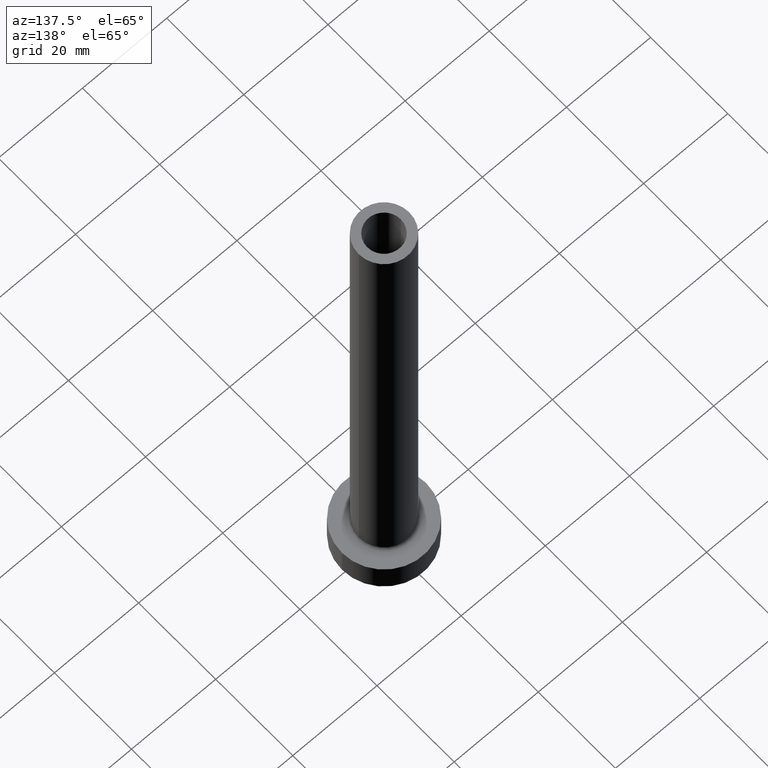
[diagram: clean part render]
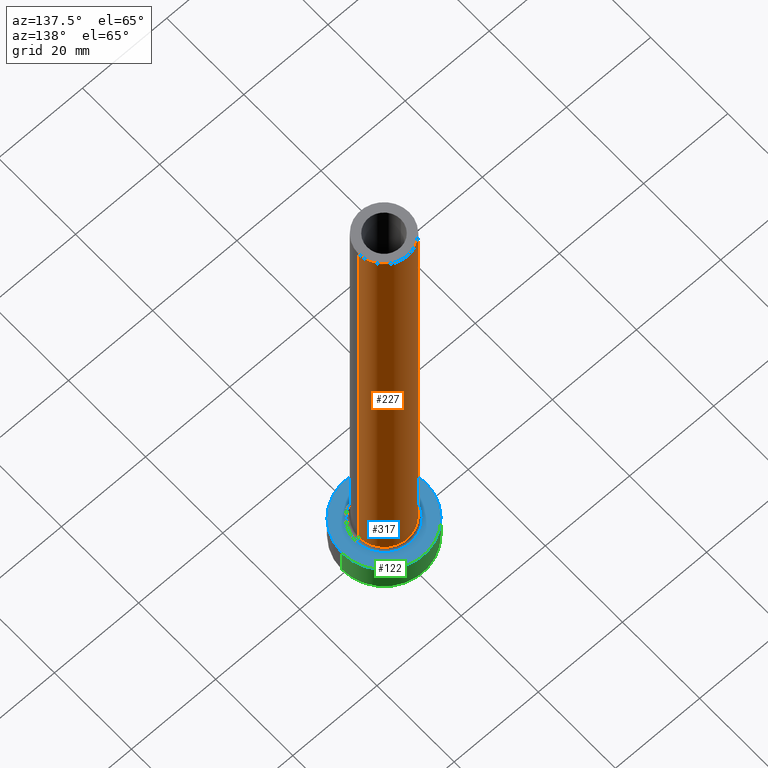
[diagram: same view with three faces highlighted in distinct colors, each labeled with its STEP entity id]
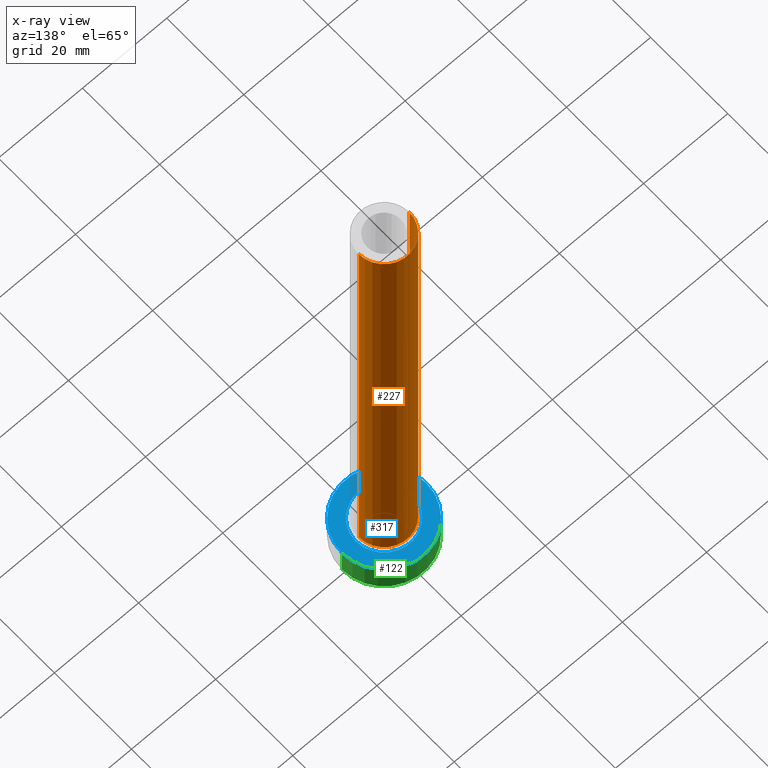
[diagram: x-ray of the same camera — body ghosted, the three highlighted faces saturated]
A machine part, auxiliary view with three faces highlighted in distinct colors.
The next image is the same camera in x-ray (body ghosted, the three faces saturated) — at least one of them is partly hidden behind the body in this view.
Their STEP definitions:

[orange] entity #227 — the highlighted cylindrical surface (edge-blend (fillet) strip) has radius 6 mm, axis along (-0, -0, -1).
#9 = VECTOR ( 'NONE', #151, 1000.000000000000000 ) ;
#21 = EDGE_LOOP ( 'NONE', ( #425, #316, #273, #22 ) ) ;
#22 = ORIENTED_EDGE ( 'NONE', *, *, #302, .F. ) ;
#26 = CARTESIAN_POINT ( 'NONE',  ( 0.000000000000000000, 0.000000000000000000, 125.0000000000000000 ) ) ;
#33 = DIRECTION ( 'NONE',  ( -1.000000000000000000, 0.000000000000000000, 0.000000000000000000 ) ) ;
#62 = CYLINDRICAL_SURFACE ( 'NONE', #203, 6.000000000000000888 ) ;
#78 = LINE ( 'NONE', #439, #92 ) ;
#92 = VECTOR ( 'NONE', #187, 1000.000000000000000 ) ;
#104 = FACE_OUTER_BOUND ( 'NONE', #21, .T. ) ;
#151 = DIRECTION ( 'NONE',  ( -0.000000000000000000, -0.000000000000000000, -1.000000000000000000 ) ) ;
#185 = CIRCLE ( 'NONE', #413, 6.000000000000000888 ) ;
#187 = DIRECTION ( 'NONE',  ( -0.000000000000000000, -0.000000000000000000, -1.000000000000000000 ) ) ;
#203 = AXIS2_PLACEMENT_3D ( 'NONE', #26, #321, #33 ) ;
#208 = CARTESIAN_POINT ( 'NONE',  ( -6.000000000000000888, 0.000000000000000000, 125.0000000000000000 ) ) ;
#219 = CARTESIAN_POINT ( 'NONE',  ( -6.000000000000000888, 0.000000000000000000, 7.699999999999998401 ) ) ;
#226 = VERTEX_POINT ( 'NONE', #356 ) ;
#227 = ADVANCED_FACE ( 'NONE', ( #104 ), #62, .T. ) ;
#232 = EDGE_CURVE ( 'NONE', #279, #393, #275, .T. ) ;
#241 = DIRECTION ( 'NONE',  ( 1.000000000000000000, 0.000000000000000000, 0.000000000000000000 ) ) ;
#273 = ORIENTED_EDGE ( 'NONE', *, *, #232, .T. ) ;
#275 = CIRCLE ( 'NONE', #345, 6.000000000000000888 ) ;
#276 = VERTEX_POINT ( 'NONE', #208 ) ;
#279 = VERTEX_POINT ( 'NONE', #332 ) ;
#284 = DIRECTION ( 'NONE',  ( 0.000000000000000000, 0.000000000000000000, 1.000000000000000000 ) ) ;
#289 = CARTESIAN_POINT ( 'NONE',  ( -6.000000000000000888, 0.000000000000000000, 125.0000000000000000 ) ) ;
#294 = EDGE_CURVE ( 'NONE', #226, #276, #185, .T. ) ;
#302 = EDGE_CURVE ( 'NONE', #276, #393, #394, .T. ) ;
#316 = ORIENTED_EDGE ( 'NONE', *, *, #391, .T. ) ;
#321 = DIRECTION ( 'NONE',  ( -0.000000000000000000, -0.000000000000000000, -1.000000000000000000 ) ) ;
#328 = CARTESIAN_POINT ( 'NONE',  ( 0.000000000000000000, 0.000000000000000000, 7.699999999999998401 ) ) ;
#332 = CARTESIAN_POINT ( 'NONE',  ( 6.000000000000000888, 7.347880794884120722E-16, 7.699999999999998401 ) ) ;
#345 = AXIS2_PLACEMENT_3D ( 'NONE', #328, #284, #452 ) ;
#356 = CARTESIAN_POINT ( 'NONE',  ( 6.000000000000000888, 7.347880794884120722E-16, 125.0000000000000000 ) ) ;
#388 = CARTESIAN_POINT ( 'NONE',  ( 0.000000000000000000, 0.000000000000000000, 125.0000000000000000 ) ) ;
#391 = EDGE_CURVE ( 'NONE', #226, #279, #78, .T. ) ;
#393 = VERTEX_POINT ( 'NONE', #219 ) ;
#394 = LINE ( 'NONE', #289, #9 ) ;
#413 = AXIS2_PLACEMENT_3D ( 'NONE', #388, #432, #241 ) ;
#425 = ORIENTED_EDGE ( 'NONE', *, *, #294, .F. ) ;
#432 = DIRECTION ( 'NONE',  ( 0.000000000000000000, 0.000000000000000000, 1.000000000000000000 ) ) ;
#439 = CARTESIAN_POINT ( 'NONE',  ( 6.000000000000000888, 7.347880794884120722E-16, 125.0000000000000000 ) ) ;
#452 = DIRECTION ( 'NONE',  ( 1.000000000000000000, 0.000000000000000000, 0.000000000000000000 ) ) ;

[blue] entity #317 — the highlighted planar face has unit normal (0, 0, 1).
#15 = PLANE ( 'NONE',  #63 ) ;
#23 = EDGE_LOOP ( 'NONE', ( #331, #28 ) ) ;
#24 = CARTESIAN_POINT ( 'NONE',  ( 0.000000000000000000, 0.000000000000000000, 7.000000000000000000 ) ) ;
#27 = EDGE_CURVE ( 'NONE', #334, #236, #229, .T. ) ;
#28 = ORIENTED_EDGE ( 'NONE', *, *, #412, .T. ) ;
#46 = CARTESIAN_POINT ( 'NONE',  ( -10.00000000000000000, 0.000000000000000000, 7.000000000000000000 ) ) ;
#59 = DIRECTION ( 'NONE',  ( -0.000000000000000000, -0.000000000000000000, -1.000000000000000000 ) ) ;
#60 = DIRECTION ( 'NONE',  ( 1.000000000000000000, 0.000000000000000000, 0.000000000000000000 ) ) ;
#63 = AXIS2_PLACEMENT_3D ( 'NONE', #143, #119, #347 ) ;
#101 = CARTESIAN_POINT ( 'NONE',  ( 10.00000000000000000, 1.224646799147353256E-15, 7.000000000000000000 ) ) ;
#106 = DIRECTION ( 'NONE',  ( 1.000000000000000000, 0.000000000000000000, 0.000000000000000000 ) ) ;
#119 = DIRECTION ( 'NONE',  ( 0.000000000000000000, 0.000000000000000000, 1.000000000000000000 ) ) ;
#130 = CARTESIAN_POINT ( 'NONE',  ( -6.700000000000001066, 8.205133554287267548E-16, 6.999999999999999112 ) ) ;
#143 = CARTESIAN_POINT ( 'NONE',  ( 0.000000000000000000, 0.000000000000000000, 7.000000000000000000 ) ) ;
#155 = EDGE_CURVE ( 'NONE', #221, #287, #156, .T. ) ;
#156 = CIRCLE ( 'NONE', #361, 6.700000000000001066 ) ;
#163 = CARTESIAN_POINT ( 'NONE',  ( 6.700000000000001066, 0.000000000000000000, 6.999999999999999112 ) ) ;
#181 = FACE_BOUND ( 'NONE', #451, .T. ) ;
#186 = CIRCLE ( 'NONE', #263, 6.700000000000001066 ) ;
#190 = AXIS2_PLACEMENT_3D ( 'NONE', #24, #319, #450 ) ;
#194 = ORIENTED_EDGE ( 'NONE', *, *, #155, .T. ) ;
#198 = CARTESIAN_POINT ( 'NONE',  ( 0.000000000000000000, 0.000000000000000000, 7.000000000000000000 ) ) ;
#217 = CIRCLE ( 'NONE', #224, 10.00000000000000000 ) ;
#221 = VERTEX_POINT ( 'NONE', #163 ) ;
#224 = AXIS2_PLACEMENT_3D ( 'NONE', #225, #379, #106 ) ;
#225 = CARTESIAN_POINT ( 'NONE',  ( 0.000000000000000000, 0.000000000000000000, 7.000000000000000000 ) ) ;
#229 = CIRCLE ( 'NONE', #190, 10.00000000000000000 ) ;
#236 = VERTEX_POINT ( 'NONE', #101 ) ;
#263 = AXIS2_PLACEMENT_3D ( 'NONE', #198, #59, #274 ) ;
#271 = DIRECTION ( 'NONE',  ( -0.000000000000000000, -0.000000000000000000, -1.000000000000000000 ) ) ;
#274 = DIRECTION ( 'NONE',  ( 1.000000000000000000, 0.000000000000000000, 0.000000000000000000 ) ) ;
#277 = CARTESIAN_POINT ( 'NONE',  ( 0.000000000000000000, 0.000000000000000000, 7.000000000000000000 ) ) ;
#287 = VERTEX_POINT ( 'NONE', #130 ) ;
#317 = ADVANCED_FACE ( 'NONE', ( #181, #344 ), #15, .T. ) ;
#319 = DIRECTION ( 'NONE',  ( 0.000000000000000000, 0.000000000000000000, 1.000000000000000000 ) ) ;
#331 = ORIENTED_EDGE ( 'NONE', *, *, #27, .T. ) ;
#334 = VERTEX_POINT ( 'NONE', #46 ) ;
#344 = FACE_OUTER_BOUND ( 'NONE', #23, .T. ) ;
#347 = DIRECTION ( 'NONE',  ( 1.000000000000000000, 0.000000000000000000, -0.000000000000000000 ) ) ;
#361 = AXIS2_PLACEMENT_3D ( 'NONE', #277, #271, #60 ) ;
#379 = DIRECTION ( 'NONE',  ( 0.000000000000000000, 0.000000000000000000, 1.000000000000000000 ) ) ;
#387 = ORIENTED_EDGE ( 'NONE', *, *, #460, .T. ) ;
#412 = EDGE_CURVE ( 'NONE', #236, #334, #217, .T. ) ;
#450 = DIRECTION ( 'NONE',  ( 1.000000000000000000, 0.000000000000000000, 0.000000000000000000 ) ) ;
#451 = EDGE_LOOP ( 'NONE', ( #194, #387 ) ) ;
#460 = EDGE_CURVE ( 'NONE', #287, #221, #186, .T. ) ;

[green] entity #122 — the highlighted cylindrical surface (partial cylindrical patch) has radius 10 mm, axis along (-0, -0, -1).
#6 = FACE_OUTER_BOUND ( 'NONE', #125, .T. ) ;
#25 = DIRECTION ( 'NONE',  ( -0.000000000000000000, -0.000000000000000000, -1.000000000000000000 ) ) ;
#42 = DIRECTION ( 'NONE',  ( -0.000000000000000000, -0.000000000000000000, -1.000000000000000000 ) ) ;
#43 = EDGE_CURVE ( 'NONE', #132, #415, #383, .T. ) ;
#46 = CARTESIAN_POINT ( 'NONE',  ( -10.00000000000000000, 0.000000000000000000, 7.000000000000000000 ) ) ;
#61 = ORIENTED_EDGE ( 'NONE', *, *, #43, .T. ) ;
#89 = VECTOR ( 'NONE', #42, 1000.000000000000000 ) ;
#101 = CARTESIAN_POINT ( 'NONE',  ( 10.00000000000000000, 1.224646799147353256E-15, 7.000000000000000000 ) ) ;
#105 = CARTESIAN_POINT ( 'NONE',  ( 10.00000000000000000, 1.224646799147353256E-15, 0.000000000000000000 ) ) ;
#106 = DIRECTION ( 'NONE',  ( 1.000000000000000000, 0.000000000000000000, 0.000000000000000000 ) ) ;
#116 = EDGE_CURVE ( 'NONE', #334, #415, #142, .T. ) ;
#122 = ADVANCED_FACE ( 'NONE', ( #6 ), #207, .T. ) ;
#125 = EDGE_LOOP ( 'NONE', ( #389, #429, #61, #197 ) ) ;
#132 = VERTEX_POINT ( 'NONE', #105 ) ;
#140 = AXIS2_PLACEMENT_3D ( 'NONE', #177, #285, #290 ) ;
#142 = LINE ( 'NONE', #433, #89 ) ;
#165 = CARTESIAN_POINT ( 'NONE',  ( 0.000000000000000000, 0.000000000000000000, 0.000000000000000000 ) ) ;
#177 = CARTESIAN_POINT ( 'NONE',  ( 0.000000000000000000, 0.000000000000000000, 7.000000000000000000 ) ) ;
#197 = ORIENTED_EDGE ( 'NONE', *, *, #116, .F. ) ;
#207 = CYLINDRICAL_SURFACE ( 'NONE', #140, 10.00000000000000000 ) ;
#217 = CIRCLE ( 'NONE', #224, 10.00000000000000000 ) ;
#223 = DIRECTION ( 'NONE',  ( 1.000000000000000000, 0.000000000000000000, 0.000000000000000000 ) ) ;
#224 = AXIS2_PLACEMENT_3D ( 'NONE', #225, #379, #106 ) ;
#225 = CARTESIAN_POINT ( 'NONE',  ( 0.000000000000000000, 0.000000000000000000, 7.000000000000000000 ) ) ;
#236 = VERTEX_POINT ( 'NONE', #101 ) ;
#245 = CARTESIAN_POINT ( 'NONE',  ( -10.00000000000000000, 0.000000000000000000, 0.000000000000000000 ) ) ;
#285 = DIRECTION ( 'NONE',  ( -0.000000000000000000, -0.000000000000000000, -1.000000000000000000 ) ) ;
#290 = DIRECTION ( 'NONE',  ( -1.000000000000000000, 0.000000000000000000, 0.000000000000000000 ) ) ;
#323 = DIRECTION ( 'NONE',  ( 0.000000000000000000, 0.000000000000000000, 1.000000000000000000 ) ) ;
#334 = VERTEX_POINT ( 'NONE', #46 ) ;
#379 = DIRECTION ( 'NONE',  ( 0.000000000000000000, 0.000000000000000000, 1.000000000000000000 ) ) ;
#383 = CIRCLE ( 'NONE', #403, 10.00000000000000000 ) ;
#389 = ORIENTED_EDGE ( 'NONE', *, *, #412, .F. ) ;
#403 = AXIS2_PLACEMENT_3D ( 'NONE', #165, #323, #223 ) ;
#412 = EDGE_CURVE ( 'NONE', #236, #334, #217, .T. ) ;
#415 = VERTEX_POINT ( 'NONE', #245 ) ;
#421 = CARTESIAN_POINT ( 'NONE',  ( 10.00000000000000000, 1.224646799147353256E-15, 7.000000000000000000 ) ) ;
#429 = ORIENTED_EDGE ( 'NONE', *, *, #455, .T. ) ;
#431 = VECTOR ( 'NONE', #25, 1000.000000000000000 ) ;
#433 = CARTESIAN_POINT ( 'NONE',  ( -10.00000000000000000, 0.000000000000000000, 7.000000000000000000 ) ) ;
#455 = EDGE_CURVE ( 'NONE', #236, #132, #456, .T. ) ;
#456 = LINE ( 'NONE', #421, #431 ) ;